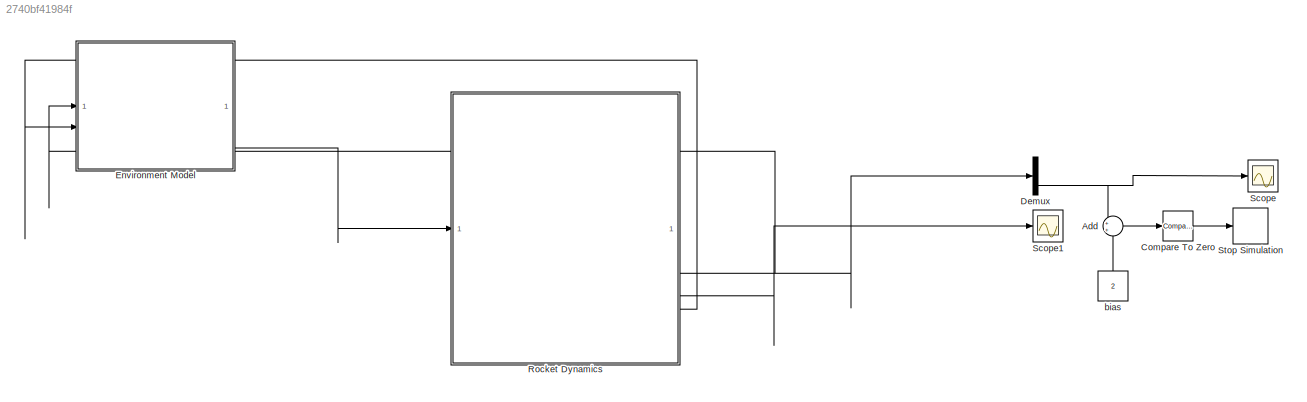
MODEL slx_2740bf41984f
KIND model
CONFIG AbsTol = auto
CONFIG EnableMultiTasking = off
CONFIG FixedStep = auto
CONFIG MaxStep = auto
CONFIG MinStep = auto
CONFIG RelTol = 1e-3
CONFIG SampleTimeConstraint = Unconstrained
CONFIG SolverName = VariableStepAuto
CONFIG StartTime = 0.0
CONFIG StopTime = 30
BLOCK [Sum] Add
BLOCK [Reference] Compare To Zero  REF=simulink/Logic and Bit
Operations/Compare
To Zero
  SourceBlock = simulink/Logic and Bit\nOperations/Compare\nTo Zero
  SourceType = Compare To Zero
BLOCK [Demux] Demux
  Outputs = 3
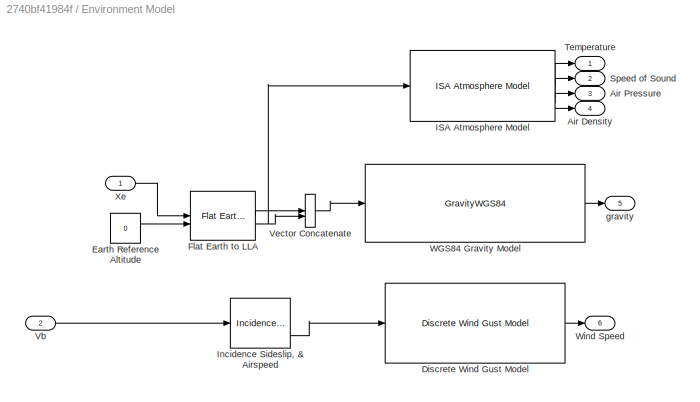
BLOCK [SubSystem] Environment Model
BLOCK [Outport] Environment Model/Air Density
  Port = 4
BLOCK [Outport] Environment Model/Air Pressure
  Port = 3
BLOCK [Reference] Environment Model/Discrete Wind Gust Model  REF=aerolibwind2/Discrete Wind Gust Model
  SourceBlock = aerolibwind2/Discrete Wind Gust Model
  SourceType = Discrete Wind Gust Model
BLOCK [Constant] Environment Model/Earth Reference Altitude
  Value = 0
BLOCK [Reference] Environment Model/Flat Earth to LLA  REF=aerolibtransform2/Flat Earth to LLA
  SourceBlock = aerolibtransform2/Flat Earth to LLA
  SourceType = Flat Earth to LLA
BLOCK [Reference] Environment Model/ISA Atmosphere Model  REF=aerolibatmos2/ISA Atmosphere Model
  SourceBlock = aerolibatmos2/ISA Atmosphere Model
  SourceType = International Standard Atmosphere Model
BLOCK [Reference] Environment Model/Incidence Sideslip, & Airspeed  REF=aerolibasang/Incidence, Sideslip,
& Airspeed
  SourceBlock = aerolibasang/Incidence, Sideslip,\n& Airspeed
  SourceType = Incidence,Sideslip,&Airspeed
BLOCK [Outport] Environment Model/Speed of Sound
  Port = 2
BLOCK [Outport] Environment Model/Temperature
BLOCK [Inport] Environment Model/Vb
  Port = 2
BLOCK [Concatenate] Environment Model/Vector Concatenate
BLOCK [GravityWGS84] Environment Model/WGS84 Gravity Model  
BLOCK [Outport] Environment Model/Wind Speed
  Port = 6
BLOCK [Inport] Environment Model/Xe
BLOCK [Outport] Environment Model/gravity
  Port = 5
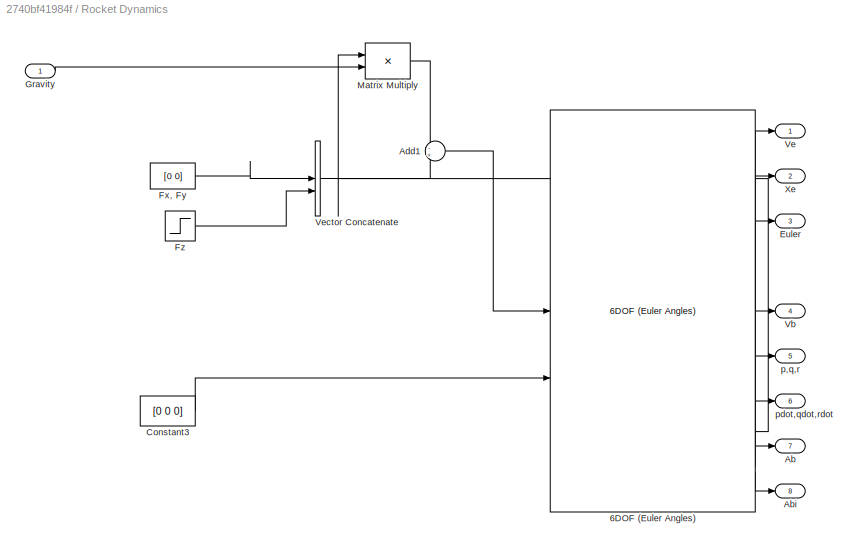
BLOCK [SubSystem] Rocket Dynamics
BLOCK [Reference] Rocket Dynamics/6DOF (Euler Angles)  REF=shared6dof/6DOF (Euler Angles)
  LibrarySourceBlock = aerolib6dof2/6DOF (Euler Angles)
  SourceBlock = shared6dof/6DOF (Euler Angles)
  SourceType = 6DOF EoM (Body Axis)
BLOCK [Outport] Rocket Dynamics/Ab
  Port = 7
BLOCK [Outport] Rocket Dynamics/Abi
  Port = 8
BLOCK [Sum] Rocket Dynamics/Add1
  Inputs = -+
BLOCK [Constant] Rocket Dynamics/Constant3
  Value = [0 0 0]
BLOCK [Outport] Rocket Dynamics/Euler
  Port = 3
BLOCK [Constant] Rocket Dynamics/Fx, Fy
  Value = [0 0]
BLOCK [Step] Rocket Dynamics/Fz
  After = 0
  Before = 50
  SampleTime = 0
  Time = 2
BLOCK [Inport] Rocket Dynamics/Gravity
BLOCK [Product] Rocket Dynamics/Matrix Multiply
  Multiplication = Matrix(*)
BLOCK [Outport] Rocket Dynamics/Vb
  Port = 4
BLOCK [Outport] Rocket Dynamics/Ve
BLOCK [Concatenate] Rocket Dynamics/Vector Concatenate
BLOCK [Outport] Rocket Dynamics/Xe
  Port = 2
BLOCK [Outport] Rocket Dynamics/p,q,r
  Port = 5
BLOCK [Outport] Rocket Dynamics/pdot,qdot,rdot
  Port = 6
BLOCK [Scope] Scope
  Floating = off
  NumInputPorts = 1
  ScopeSpecificationString = Simulink.scopes.TimeScopeBlockCfg('CurrentConfiguration', extmgr.ConfigurationSet(extmgr.Configuration('Core','General UI',true),extmgr.Configuration('Core','Source UI',true),extmgr.Configuration('Sources','WiredSimulink',true),extmgr.Configuration('Visuals','Time Domain',true,'SerializedDisplays',{struct('MinYLimReal','-53.63825','MaxYLimReal','462.74428','YLabelReal','','MinYLimMag','0.00000','M...<+1337ch>
BLOCK [Scope] Scope1
  Floating = off
  NumInputPorts = 1
  ScopeSpecificationString = Simulink.scopes.TimeScopeBlockCfg('CurrentConfiguration', extmgr.ConfigurationSet(extmgr.Configuration('Core','General UI',true),extmgr.Configuration('Core','Source UI',true),extmgr.Configuration('Sources','WiredSimulink',true,'DataLoggingVariableName','ScopeData1'),extmgr.Configuration('Visuals','Time Domain',true,'SerializedDisplays',{struct('MinYLimReal','-0.01985','MaxYLimReal','0.0276','YLabe...<+1419ch>
BLOCK [Stop] Stop Simulation
BLOCK [Constant] bias
  NameLocation = right
  Value = 2
LINE Add:1 -> Compare To Zero:1
LINE Compare To Zero:1 -> Stop Simulation:1
NET Demux:3 -> Add:1, Scope:1
LINE Environment Model/Discrete Wind Gust Model:1 -> Environment Model/Wind Speed:1
LINE Environment Model/Earth Reference Altitude:1 -> Environment Model/Flat Earth to LLA:2
LINE Environment Model/Flat Earth to LLA:1 -> Environment Model/Vector Concatenate:1
NET Environment Model/Flat Earth to LLA:2 -> Environment Model/ISA Atmosphere Model:1, Environment Model/Vector Concatenate:2
LINE Environment Model/ISA Atmosphere Model:1 -> Environment Model/Temperature:1
LINE Environment Model/ISA Atmosphere Model:2 -> Environment Model/Speed of Sound:1
LINE Environment Model/ISA Atmosphere Model:3 -> Environment Model/Air Pressure:1
LINE Environment Model/ISA Atmosphere Model:4 -> Environment Model/Air Density:1
LINE Environment Model/Incidence Sideslip, & Airspeed:3 -> Environment Model/Discrete Wind Gust Model:1
LINE Environment Model/Vb:1 -> Environment Model/Incidence Sideslip, & Airspeed:1
LINE Environment Model/Vector Concatenate:1 -> Environment Model/WGS84 Gravity Model  :1
LINE Environment Model/WGS84 Gravity Model  :1 -> Environment Model/gravity:1
LINE Environment Model/Xe:1 -> Environment Model/Flat Earth to LLA:1
LINE Environment Model:5 -> Rocket Dynamics:1
LINE Rocket Dynamics/6DOF (Euler Angles):1 -> Rocket Dynamics/Ve:1
LINE Rocket Dynamics/6DOF (Euler Angles):2 -> Rocket Dynamics/Xe:1
LINE Rocket Dynamics/6DOF (Euler Angles):3 -> Rocket Dynamics/Euler:1
LINE Rocket Dynamics/6DOF (Euler Angles):4 -> Rocket Dynamics/Matrix Multiply:1
LINE Rocket Dynamics/6DOF (Euler Angles):5 -> Rocket Dynamics/Vb:1
LINE Rocket Dynamics/6DOF (Euler Angles):6 -> Rocket Dynamics/p,q,r:1
LINE Rocket Dynamics/6DOF (Euler Angles):7 -> Rocket Dynamics/pdot,qdot,rdot:1
LINE Rocket Dynamics/6DOF (Euler Angles):8 -> Rocket Dynamics/Ab:1
LINE Rocket Dynamics/6DOF (Euler Angles):9 -> Rocket Dynamics/Abi:1
LINE Rocket Dynamics/Add1:1 -> Rocket Dynamics/6DOF (Euler Angles):1
LINE Rocket Dynamics/Constant3:1 -> Rocket Dynamics/6DOF (Euler Angles):2
LINE Rocket Dynamics/Fx, Fy:1 -> Rocket Dynamics/Vector Concatenate:1
LINE Rocket Dynamics/Fz:1 -> Rocket Dynamics/Vector Concatenate:2
LINE Rocket Dynamics/Gravity:1 -> Rocket Dynamics/Matrix Multiply:2
LINE Rocket Dynamics/Matrix Multiply:1 -> Rocket Dynamics/Add1:1
LINE Rocket Dynamics/Vector Concatenate:1 -> Rocket Dynamics/Add1:2
NET Rocket Dynamics:2 -> Demux:1, Environment Model:1
LINE Rocket Dynamics:3 -> Scope1:1
LINE Rocket Dynamics:4 -> Environment Model:2
LINE bias:1 -> Add:2
note: NET lines group one-source signal fan-out (src -> all destinations, sorted); 1:1 wires keep LINE
